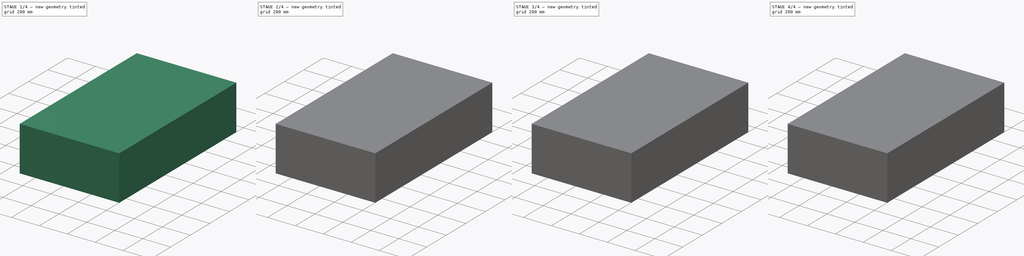
[diagram: build sequence overview — one tinted view per stage of 4, left to right]
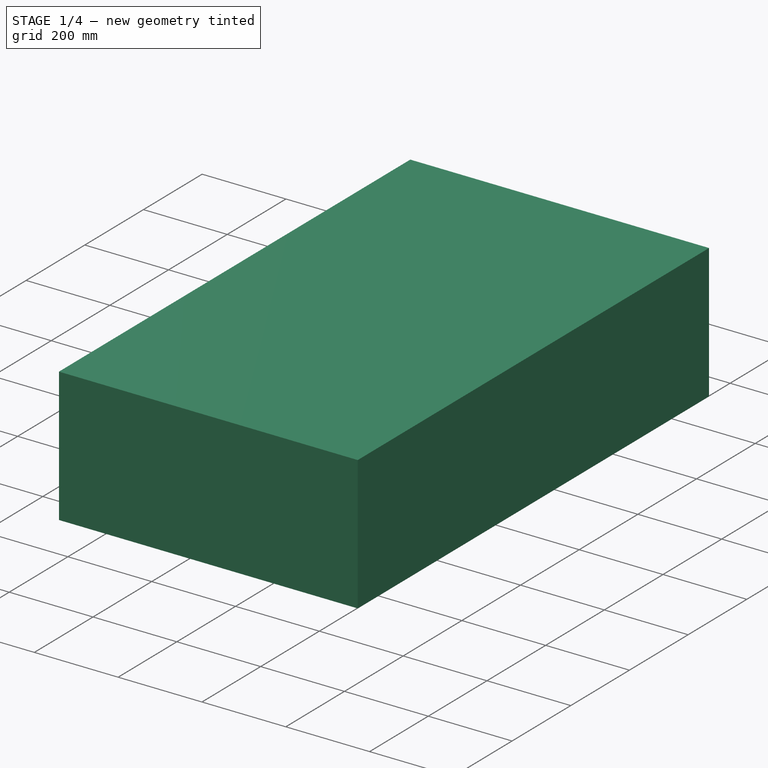
[diagram: stage 1 of 4 — iso view after this stage's code; geometry added in this stage tinted green]
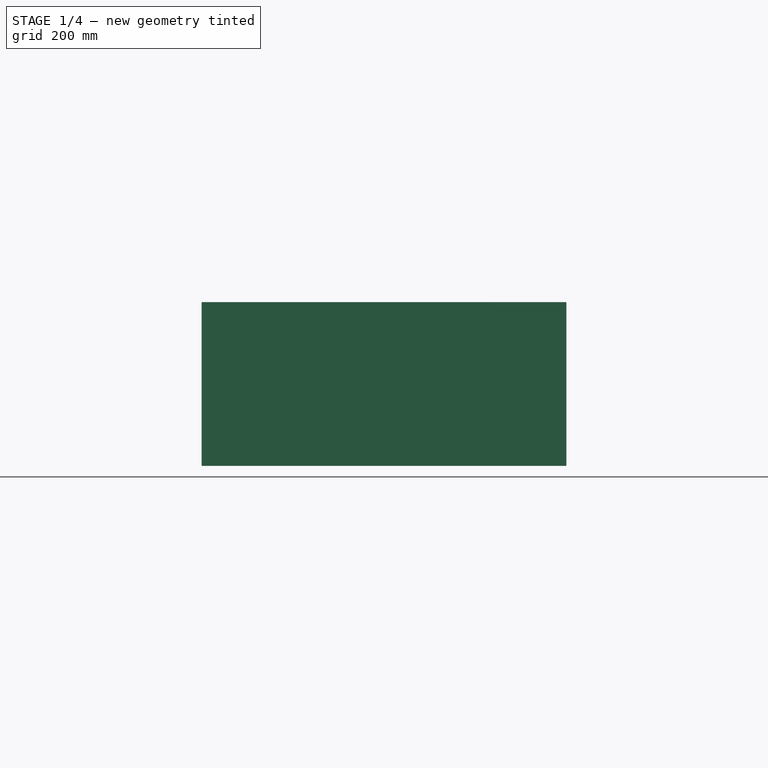
[diagram: stage 1 of 4 — front view after this stage's code; geometry added in this stage tinted green]
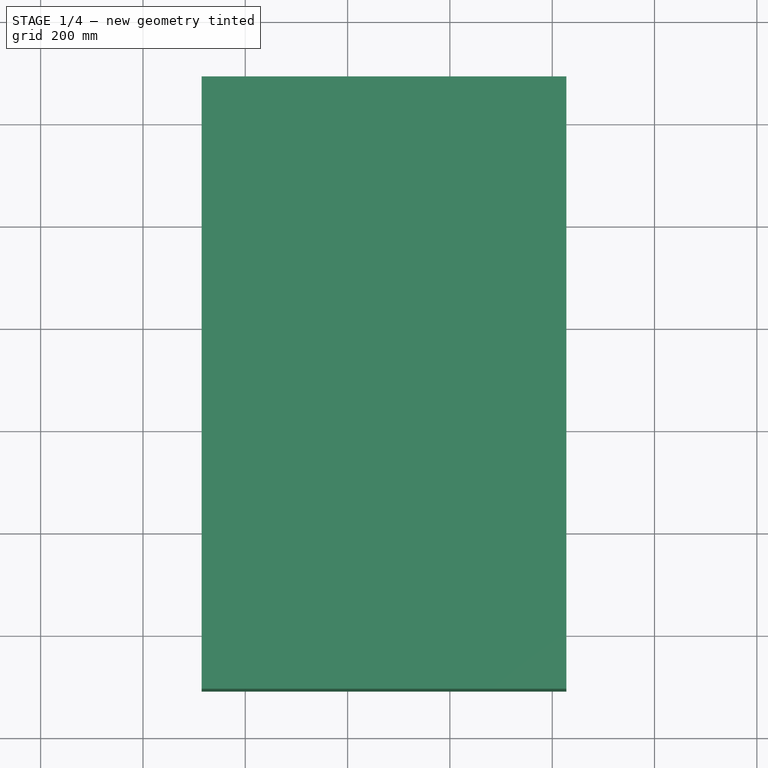
[diagram: stage 1 of 4 — top view after this stage's code; geometry added in this stage tinted green]
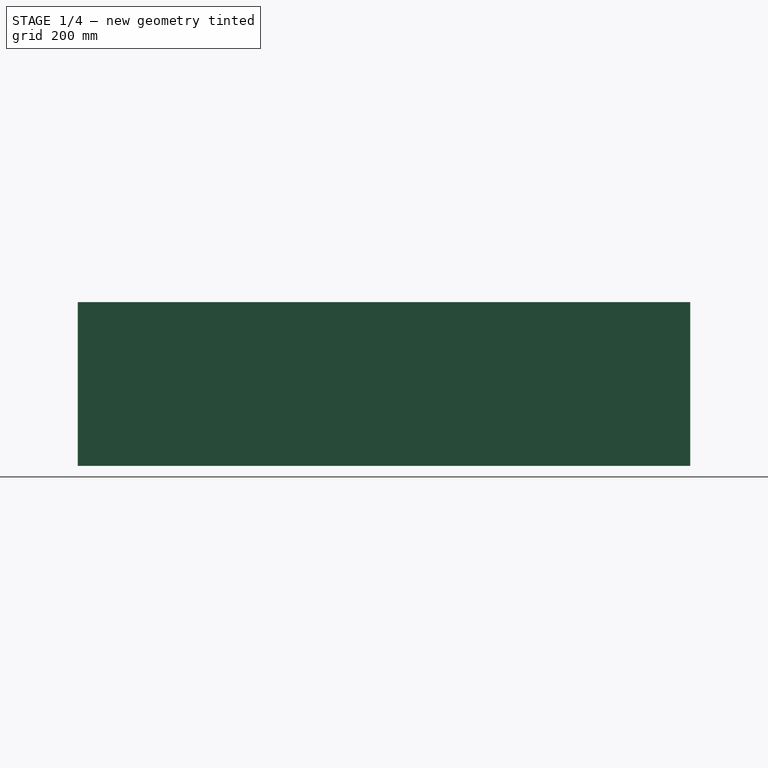
[diagram: stage 1 of 4 — right view after this stage's code; geometry added in this stage tinted green]
FCSTD DOCUMENT  (FreeCAD 0.20R29177 (Git))
Label: Rectangular_Waveguide
License: All rights reserved
LicenseURL: http://en.wikipedia.org/wiki/All_rights_reserved
objects: Sketcher::SketchObject×9, Part::Extrusion×9
note: 18 computed .brp shape members not serialized (recipe doc carries the construction recipe); baked Part::Feature solids carry a one-line shape summary decoded from their .brp

FEATURE [Sketcher::SketchObject] Sketch009
  FullyConstrained = false
  Placement = pos=(0,0,0) rot=(1,0,0;1.5708rad)
  sketch-geometry (4):
    g0: LineSegment StartX=0 StartY=95.4145 StartZ=0 EndX=537.972 EndY=95.4145 EndZ=0
    g1: LineSegment StartX=537.972 StartY=95.4145 StartZ=0 EndX=537.972 EndY=91.6346 EndZ=0
    g2: LineSegment StartX=537.972 StartY=91.6346 StartZ=0 EndX=0 EndY=91.6346 EndZ=0
    g3: LineSegment StartX=0 StartY=91.6346 StartZ=0 EndX=0 EndY=95.4145 EndZ=0
  constraints (9):
    c: Coincident(g0,g1)
    c: Coincident(g1,g2)
    c: Coincident(g2,g3)
    c: Coincident(g3,g0)
    c: Horizontal(g0)
    c: Horizontal(g2)
    c: Vertical(g1)
    c: Vertical(g3)
    c: PointOnObject(g0,g-2)
FEATURE [Part::Extrusion] Extrude009  label="electric field"
  Base = -> Sketch009
  Dir = (0,-1,3e-16)
  DirMode = 2
  FaceMakerClass = Part::FaceMakerBullseye
  LengthFwd = 1000
  LengthRev = 0
  Solid = true
  Symmetric = false
FEATURE [Sketcher::SketchObject] Sketch010  label="air sketch"
  FullyConstrained = false
  Placement = pos=(0,0,120) rot=(0,0,1;0rad)
  sketch-geometry (4):
    g0: LineSegment StartX=-85.3387 StartY=88.7321 StartZ=0 EndX=627.676 EndY=88.7321 EndZ=0
    g1: LineSegment StartX=627.676 StartY=88.7321 StartZ=0 EndX=627.676 EndY=-1108.56 EndZ=0
    g2: LineSegment StartX=627.676 StartY=-1108.56 StartZ=0 EndX=-85.3387 EndY=-1108.56 EndZ=0
    g3: LineSegment StartX=-85.3387 StartY=-1108.56 StartZ=0 EndX=-85.3387 EndY=88.7321 EndZ=0
  constraints (8):
    c: Coincident(g0,g1)
    c: Coincident(g1,g2)
    c: Coincident(g2,g3)
    c: Coincident(g3,g0)
    c: Horizontal(g0)
    c: Horizontal(g2)
    c: Vertical(g1)
    c: Vertical(g3)
FEATURE [Part::Extrusion] Extrude010  label="air box"
  Base = -> Sketch010
  Dir = (0,0,1)
  DirMode = 2
  FaceMakerClass = Part::FaceMakerBullseye
  LengthFwd = 320
  LengthRev = 0
  Solid = true
  Symmetric = true
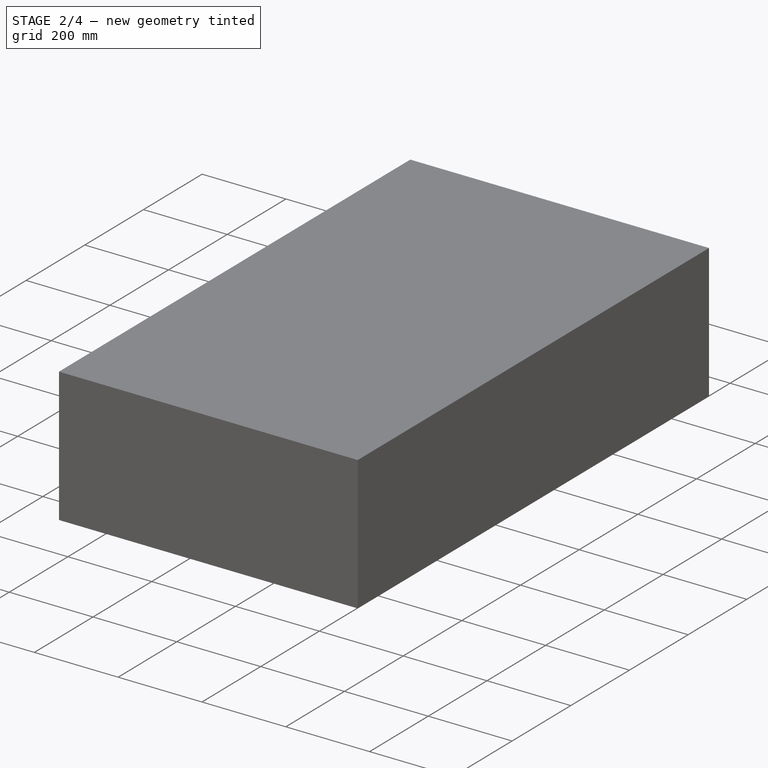
[diagram: stage 2 of 4 — iso view after this stage's code; geometry added in this stage tinted green]
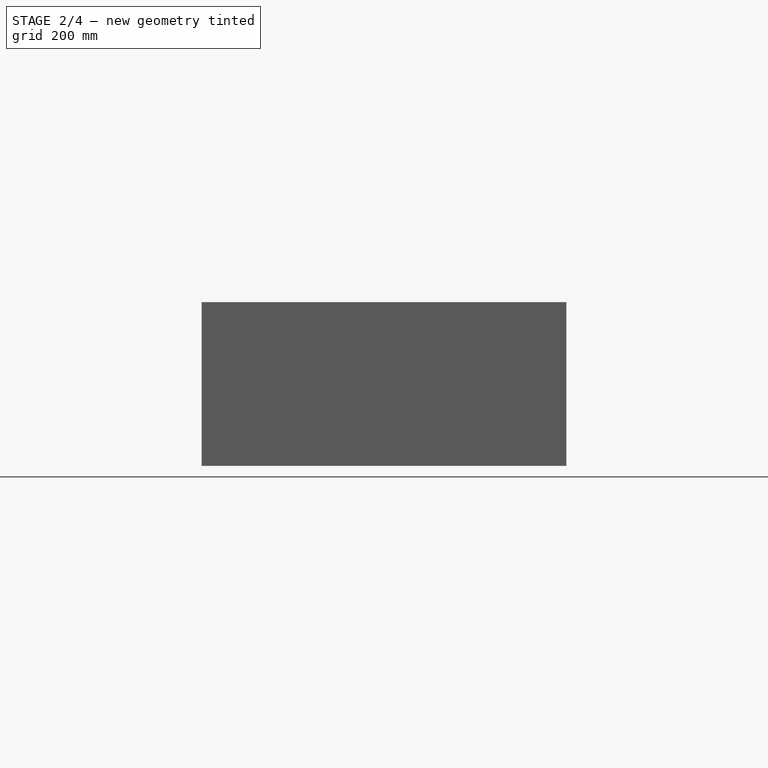
[diagram: stage 2 of 4 — front view after this stage's code; geometry added in this stage tinted green]
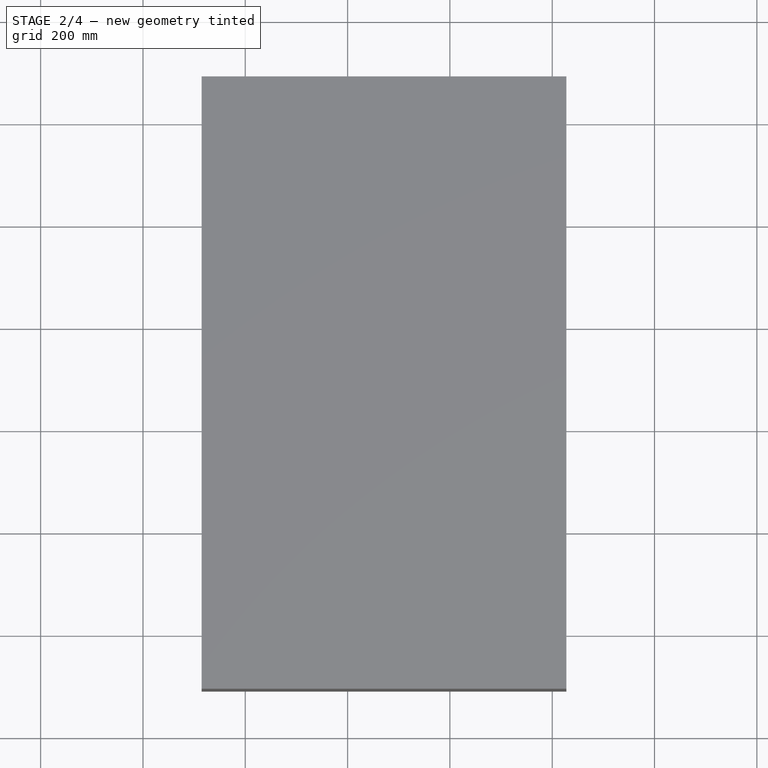
[diagram: stage 2 of 4 — top view after this stage's code; geometry added in this stage tinted green]
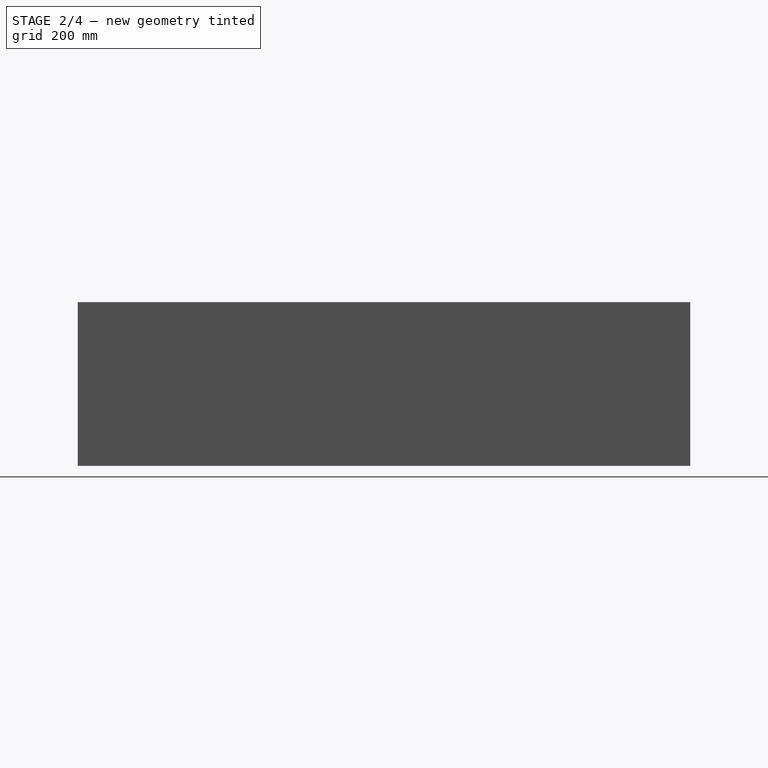
[diagram: stage 2 of 4 — right view after this stage's code; geometry added in this stage tinted green]
FEATURE [Sketcher::SketchObject] Sketch
  FullyConstrained = false
  Placement = pos=(0,0,0) rot=(1,0,0;1.5708rad)
  sketch-geometry (8):
    g0: LineSegment StartX=0 StartY=0 StartZ=0 EndX=536.533 EndY=0 EndZ=0
    g1: LineSegment StartX=536.533 StartY=0 StartZ=0 EndX=536.533 EndY=199.352 EndZ=0
    g2: LineSegment StartX=536.533 StartY=199.352 StartZ=0 EndX=0 EndY=199.352 EndZ=0
    g3: LineSegment StartX=0 StartY=199.352 StartZ=0 EndX=0 EndY=0 EndZ=0
    g4: LineSegment StartX=-1 StartY=-1 StartZ=0 EndX=537.533 EndY=-1 EndZ=0
    g5: LineSegment StartX=537.533 StartY=-1 StartZ=0 EndX=537.533 EndY=200.352 EndZ=0
    g6: LineSegment StartX=537.533 StartY=200.352 StartZ=0 EndX=-1 EndY=200.352 EndZ=0
    g7: LineSegment StartX=-1 StartY=200.352 StartZ=0 EndX=-1 EndY=-1 EndZ=0
  constraints (21):
    c: Coincident(g0,g1)
    c: Coincident(g1,g2)
    c: Coincident(g2,g3)
    c: Coincident(g3,g0)
    c: Horizontal(g0)
    c: Horizontal(g2)
    c: Vertical(g1)
    c: Vertical(g3)
    c: Coincident(g0,g-1)
    c: Coincident(g4,g5)
    c: Coincident(g5,g6)
    c: Coincident(g6,g7)
    c: Coincident(g7,g4)
    c: Horizontal(g4)
    c: Horizontal(g6)
    c: Vertical(g5)
    c: Vertical(g7)
    c: DistanceX(g1,g5) = 1
    c: Distance(g1,g6) = 1
    c: Distance(g0,g7) = 1
    c: Distance(g0,g4) = 1
FEATURE [Part::Extrusion] Extrude  label="waveguide"
  Base = -> Sketch
  Dir = (0,-1,1.1e-15)
  DirMode = 2
  FaceMakerClass = Part::FaceMakerBullseye
  LengthFwd = 1000
  LengthRev = 0
  Solid = true
  Symmetric = false
FEATURE [Sketcher::SketchObject] Sketch008
  FullyConstrained = false
  MapMode = 5
  Placement = pos=(0,-1000,1.11e-12) rot=(1,0,0;1.5708rad)
  Support = -> [Extrude]
  sketch-geometry (4):
    g0: LineSegment StartX=537.541 StartY=-1.05965 StartZ=0 EndX=-1.21248 EndY=-1.05965 EndZ=0
    g1: LineSegment StartX=-1.21248 StartY=-1.05965 StartZ=0 EndX=-1.21248 EndY=0.000982 EndZ=0
    g2: LineSegment StartX=-1.21248 StartY=0.000982 StartZ=0 EndX=537.541 EndY=0.000982 EndZ=0
    g3: LineSegment StartX=537.541 StartY=0.000982 StartZ=0 EndX=537.541 EndY=-1.05965 EndZ=0
  constraints (8):
    c: Coincident(g0,g1)
    c: Coincident(g1,g2)
    c: Coincident(g2,g3)
    c: Coincident(g3,g0)
    c: Horizontal(g0)
    c: Horizontal(g2)
    c: Vertical(g1)
    c: Vertical(g3)
FEATURE [Part::Extrusion] Extrude008  label="horizontal side 2"
  Base = -> Sketch008
  Dir = (0,-1,1.1e-15)
  DirMode = 2
  FaceMakerClass = Part::FaceMakerBullseye
  LengthFwd = 10
  LengthRev = 0
  Solid = true
  Symmetric = false
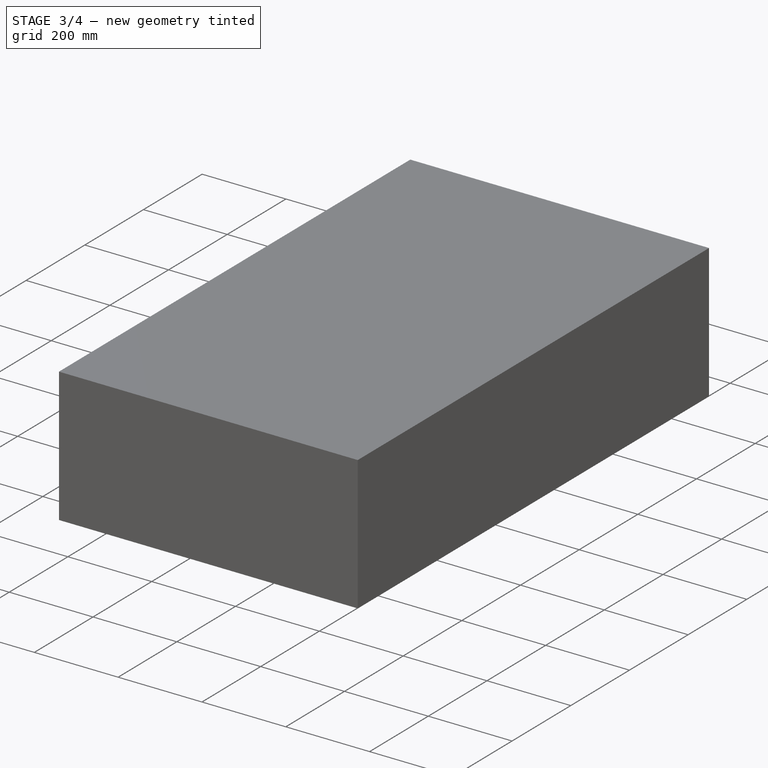
[diagram: stage 3 of 4 — iso view after this stage's code; geometry added in this stage tinted green]
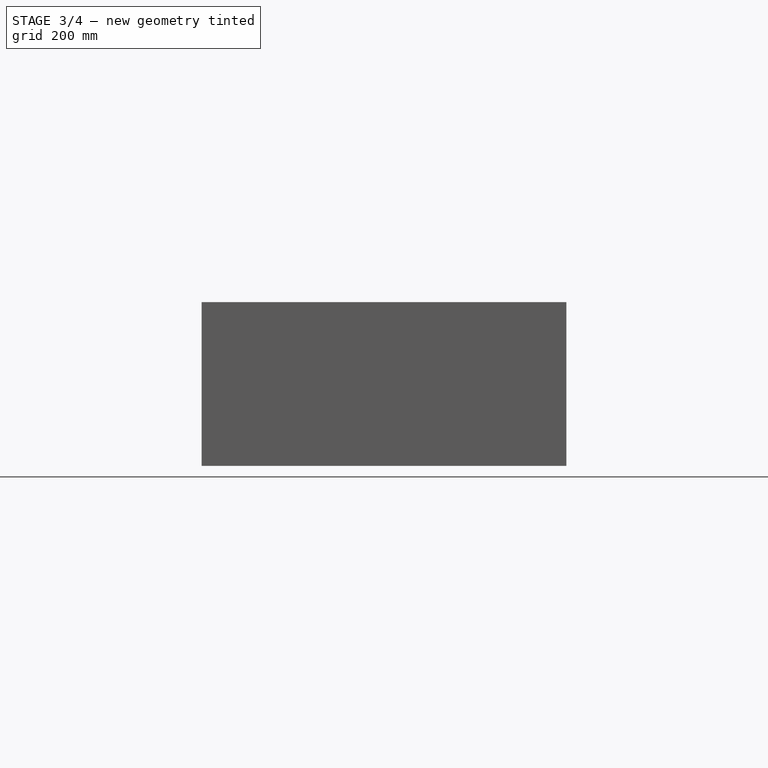
[diagram: stage 3 of 4 — front view after this stage's code; geometry added in this stage tinted green]
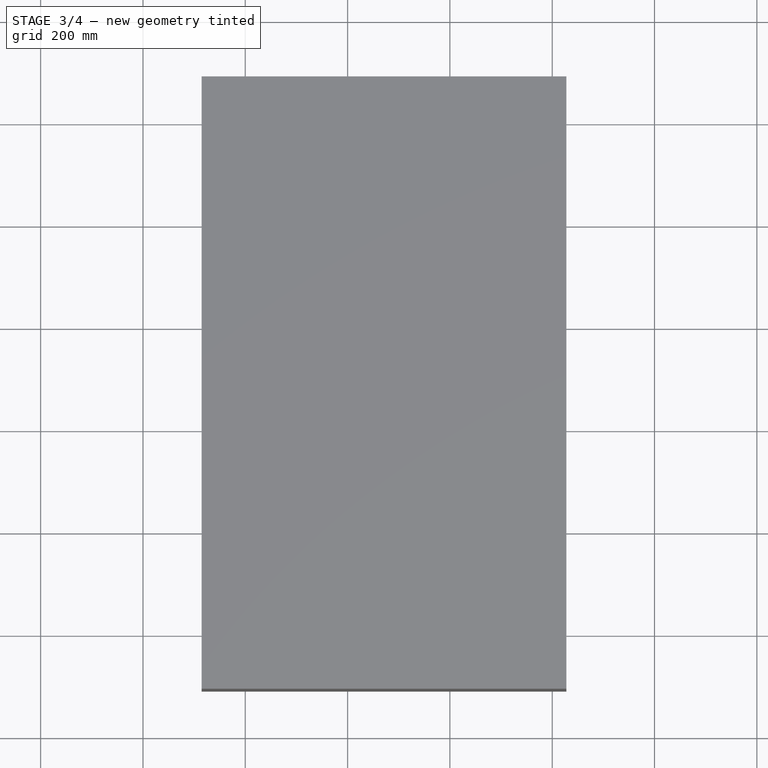
[diagram: stage 3 of 4 — top view after this stage's code; geometry added in this stage tinted green]
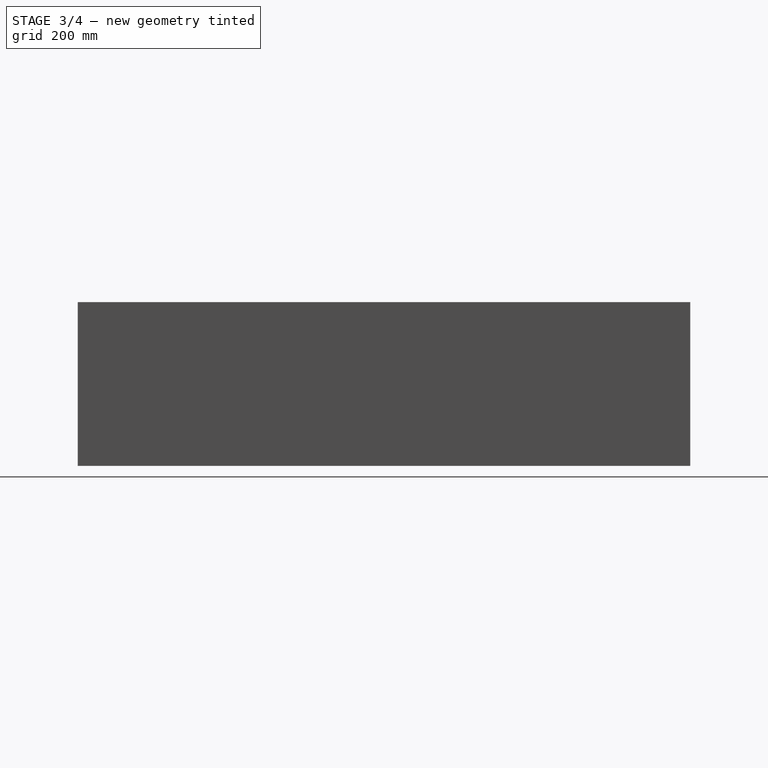
[diagram: stage 3 of 4 — right view after this stage's code; geometry added in this stage tinted green]
FEATURE [Sketcher::SketchObject] Sketch005
  FullyConstrained = false
  MapMode = 5
  Placement = pos=(0,-1000,1.11e-12) rot=(1,0,0;1.5708rad)
  Support = -> [Extrude]
  sketch-geometry (4):
    g0: LineSegment StartX=-1.10023 StartY=200.348 StartZ=0 EndX=0 EndY=200.348 EndZ=0
    g1: LineSegment StartX=0 StartY=200.348 StartZ=0 EndX=0 EndY=-1.0564 EndZ=0
    g2: LineSegment StartX=0 StartY=-1.0564 StartZ=0 EndX=-1.10023 EndY=-1.0564 EndZ=0
    g3: LineSegment StartX=-1.10023 StartY=-1.0564 StartZ=0 EndX=-1.10023 EndY=200.348 EndZ=0
  constraints (9):
    c: Coincident(g0,g1)
    c: Coincident(g1,g2)
    c: Coincident(g2,g3)
    c: Coincident(g3,g0)
    c: Horizontal(g0)
    c: Horizontal(g2)
    c: Vertical(g1)
    c: Vertical(g3)
    c: PointOnObject(g1,g-2)
FEATURE [Part::Extrusion] Extrude005  label="vertical side 1"
  Base = -> Sketch005
  Dir = (0,-1,1.1e-15)
  DirMode = 2
  FaceMakerClass = Part::FaceMakerBullseye
  LengthFwd = 10
  LengthRev = 0
  Solid = true
  Symmetric = false
FEATURE [Sketcher::SketchObject] Sketch006
  FullyConstrained = false
  MapMode = 5
  Placement = pos=(0,-1000,1.11e-12) rot=(1,0,0;1.5708rad)
  Support = -> [Extrude]
  sketch-geometry (4):
    g0: LineSegment StartX=537.511 StartY=200.397 StartZ=0 EndX=536.519 EndY=200.397 EndZ=0
    g1: LineSegment StartX=536.519 StartY=200.397 StartZ=0 EndX=536.519 EndY=-1.05468 EndZ=0
    g2: LineSegment StartX=536.519 StartY=-1.05468 StartZ=0 EndX=537.511 EndY=-1.05468 EndZ=0
    g3: LineSegment StartX=537.511 StartY=-1.05468 StartZ=0 EndX=537.511 EndY=200.397 EndZ=0
  constraints (8):
    c: Coincident(g0,g1)
    c: Coincident(g1,g2)
    c: Coincident(g2,g3)
    c: Coincident(g3,g0)
    c: Horizontal(g0)
    c: Horizontal(g2)
    c: Vertical(g1)
    c: Vertical(g3)
FEATURE [Part::Extrusion] Extrude006  label="vertical side 2"
  Base = -> Sketch006
  Dir = (0,-1,1.1e-15)
  DirMode = 2
  FaceMakerClass = Part::FaceMakerBullseye
  LengthFwd = 10
  LengthRev = 0
  Solid = true
  Symmetric = false
FEATURE [Sketcher::SketchObject] Sketch007
  FullyConstrained = false
  MapMode = 5
  Placement = pos=(0,-1000,1.11e-12) rot=(1,0,0;1.5708rad)
  Support = -> [Extrude]
  sketch-geometry (4):
    g0: LineSegment StartX=537.516 StartY=200.353 StartZ=0 EndX=-1.22596 EndY=200.353 EndZ=0
    g1: LineSegment StartX=-1.22596 StartY=200.353 StartZ=0 EndX=-1.22596 EndY=199.303 EndZ=0
    g2: LineSegment StartX=-1.22596 StartY=199.303 StartZ=0 EndX=537.516 EndY=199.303 EndZ=0
    g3: LineSegment StartX=537.516 StartY=199.303 StartZ=0 EndX=537.516 EndY=200.353 EndZ=0
  constraints (8):
    c: Coincident(g0,g1)
    c: Coincident(g1,g2)
    c: Coincident(g2,g3)
    c: Coincident(g3,g0)
    c: Horizontal(g0)
    c: Horizontal(g2)
    c: Vertical(g1)
    c: Vertical(g3)
FEATURE [Part::Extrusion] Extrude007  label="horizontal side 1"
  Base = -> Sketch007
  Dir = (0,-1,1.1e-15)
  DirMode = 2
  FaceMakerClass = Part::FaceMakerBullseye
  LengthFwd = 10
  LengthRev = 0
  Solid = true
  Symmetric = false
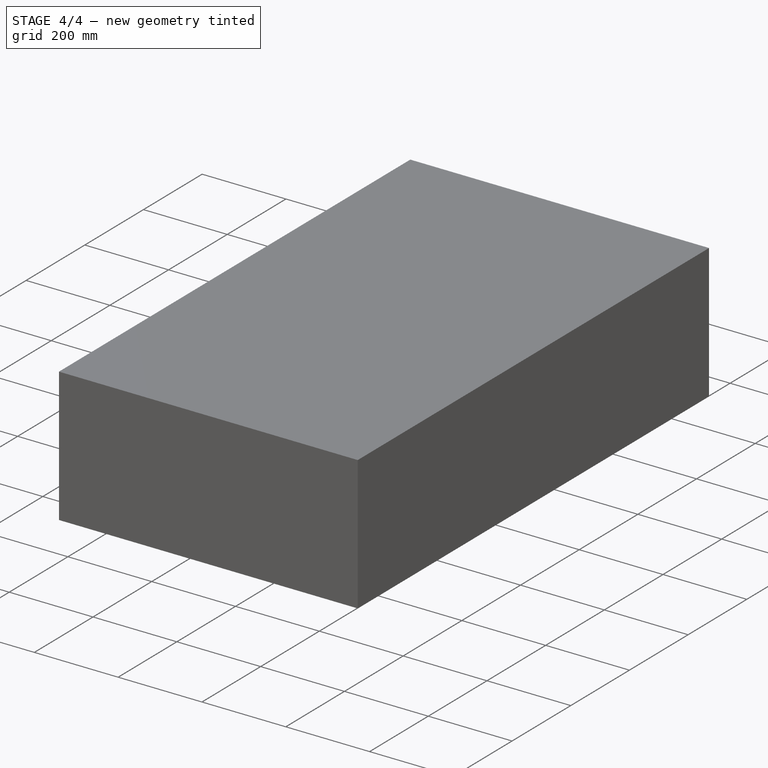
[diagram: stage 4 of 4 — iso view after this stage's code; geometry added in this stage tinted green]
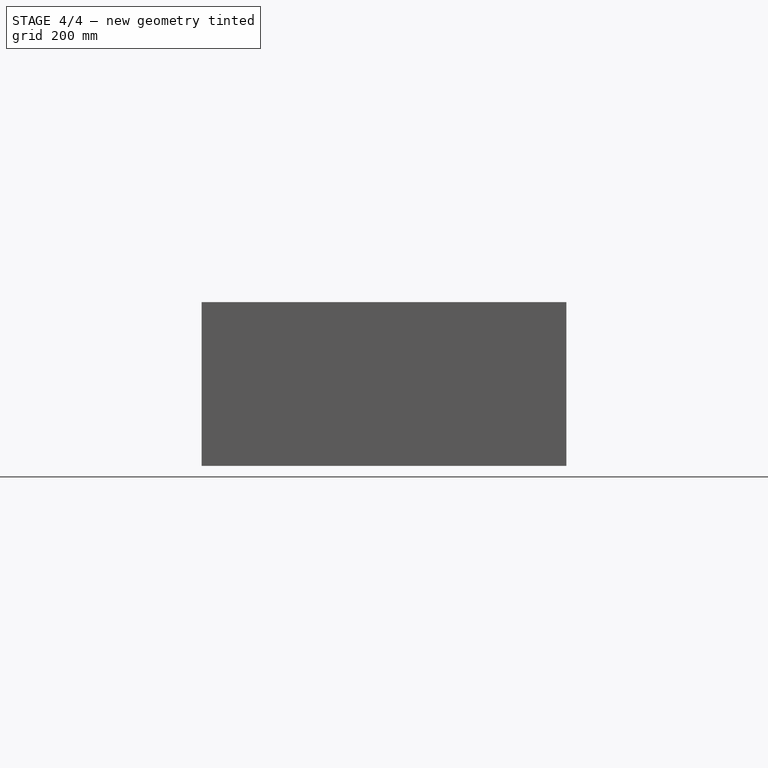
[diagram: stage 4 of 4 — front view after this stage's code; geometry added in this stage tinted green]
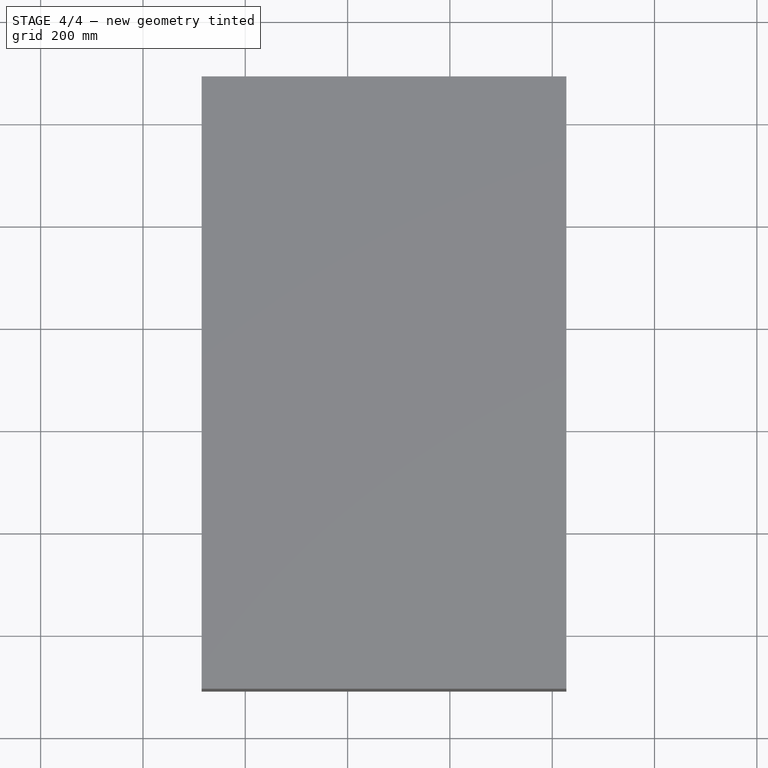
[diagram: stage 4 of 4 — top view after this stage's code; geometry added in this stage tinted green]
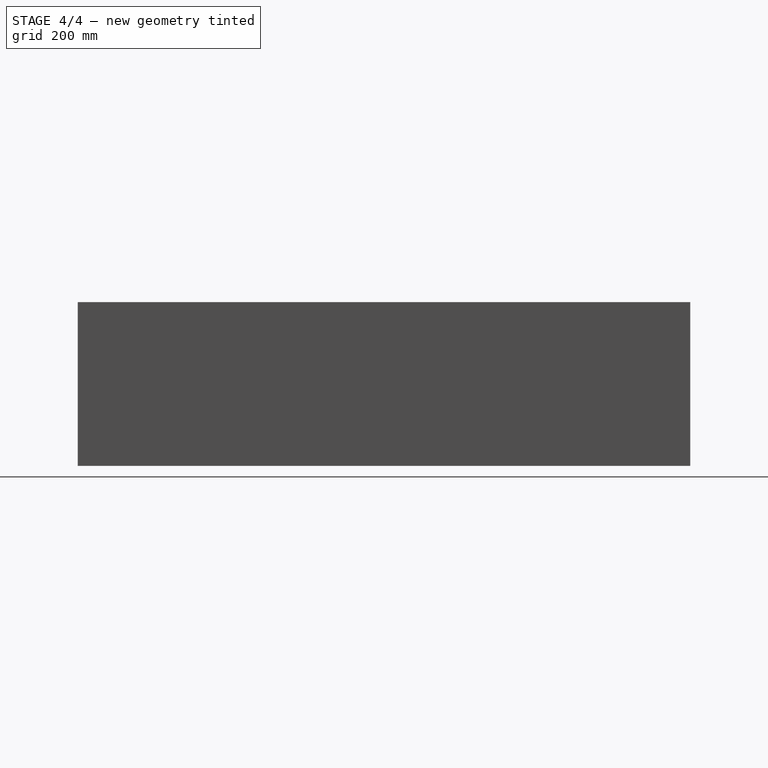
[diagram: stage 4 of 4 — right view after this stage's code; geometry added in this stage tinted green]
FEATURE [Sketcher::SketchObject] Sketch003
  FullyConstrained = false
  MapMode = 5
  Placement = pos=(0,2.224e-13,200.352) rot=(0,0,1;0rad)
  Support = -> [Extrude]
  sketch-geometry (4):
    g0: LineSegment StartX=-1.47768 StartY=0.367001 StartZ=0 EndX=539.538 EndY=0.367001 EndZ=0
    g1: LineSegment StartX=539.538 StartY=0.367001 StartZ=0 EndX=539.538 EndY=2.83506 EndZ=0
    g2: LineSegment StartX=539.538 StartY=2.83506 StartZ=0 EndX=-1.47768 EndY=2.83506 EndZ=0
    g3: LineSegment StartX=-1.47768 StartY=2.83506 StartZ=0 EndX=-1.47768 EndY=0.367001 EndZ=0
  constraints (8):
    c: Coincident(g0,g1)
    c: Coincident(g1,g2)
    c: Coincident(g2,g3)
    c: Coincident(g3,g0)
    c: Horizontal(g0)
    c: Horizontal(g2)
    c: Vertical(g1)
    c: Vertical(g3)
FEATURE [Part::Extrusion] Extrude003  label="portOut"
  Base = -> Sketch003
  Dir = (0,1.1e-15,1)
  DirMode = 2
  FaceMakerClass = Part::FaceMakerBullseye
  LengthFwd = 200
  LengthRev = 0
  Reversed = true
  Solid = true
  Symmetric = false
FEATURE [Sketcher::SketchObject] Sketch004
  FullyConstrained = false
  MapMode = 5
  Placement = pos=(0,2.224e-13,200.352) rot=(0,0,1;0rad)
  Support = -> [Extrude]
  sketch-geometry (4):
    g0: LineSegment StartX=537.421 StartY=-400.183 StartZ=0 EndX=-2.16657 EndY=-400.183 EndZ=0
    g1: LineSegment StartX=-2.16657 StartY=-400.183 StartZ=0 EndX=-2.16657 EndY=-393.395 EndZ=0
    g2: LineSegment StartX=-2.16657 StartY=-393.395 StartZ=0 EndX=537.421 EndY=-393.395 EndZ=0
    g3: LineSegment StartX=537.421 StartY=-393.395 StartZ=0 EndX=537.421 EndY=-400.183 EndZ=0
  constraints (8):
    c: Coincident(g0,g1)
    c: Coincident(g1,g2)
    c: Coincident(g2,g3)
    c: Coincident(g3,g0)
    c: Horizontal(g0)
    c: Horizontal(g2)
    c: Vertical(g1)
    c: Vertical(g3)
FEATURE [Part::Extrusion] Extrude004  label="portIn"
  Base = -> Sketch004
  Dir = (0,1.1e-15,1)
  DirMode = 2
  FaceMakerClass = Part::FaceMakerBullseye
  LengthFwd = -200
  LengthRev = 0
  Placement = pos=(0,-600,0) rot=(0,0,1;0rad)
  Solid = true
  Symmetric = false
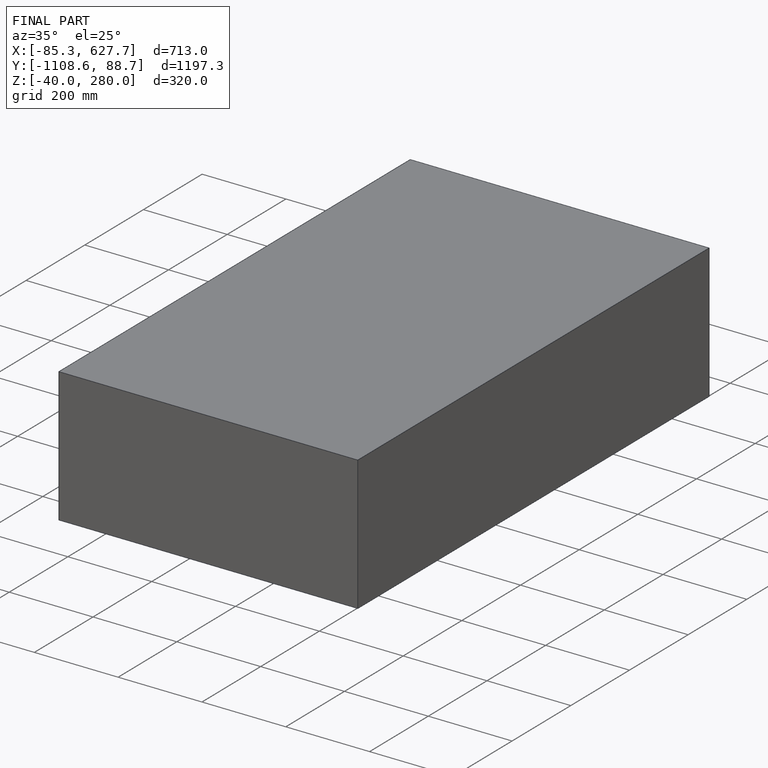
[diagram: finished part — iso view with bounding-box wireframe]
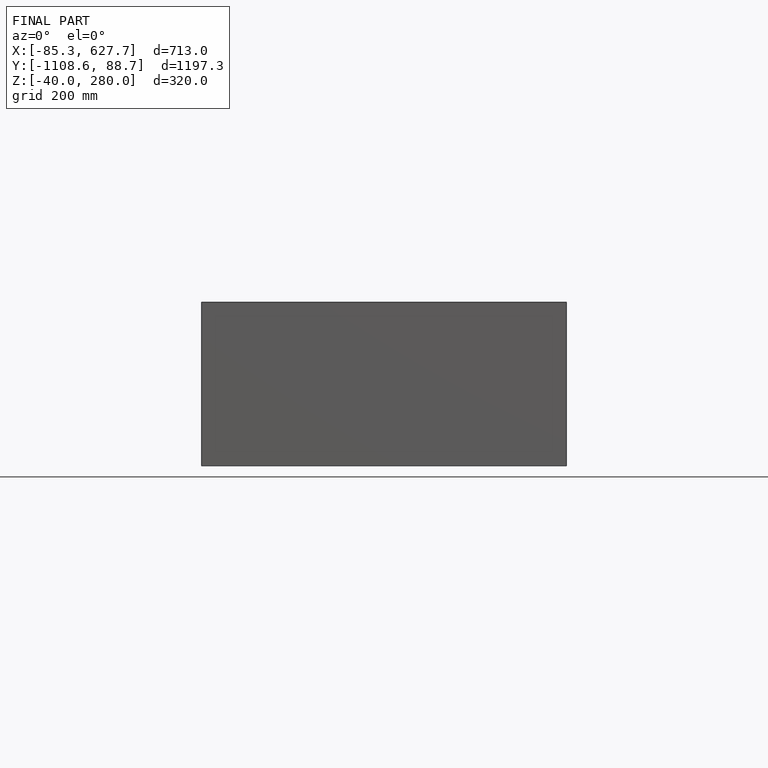
[diagram: finished part — front view with bounding-box wireframe]
